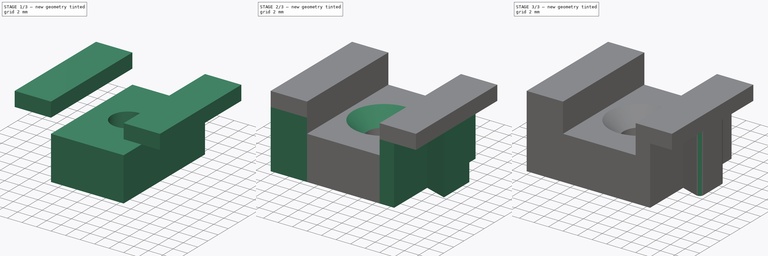
[diagram: build sequence overview — one tinted view per stage of 3, left to right]
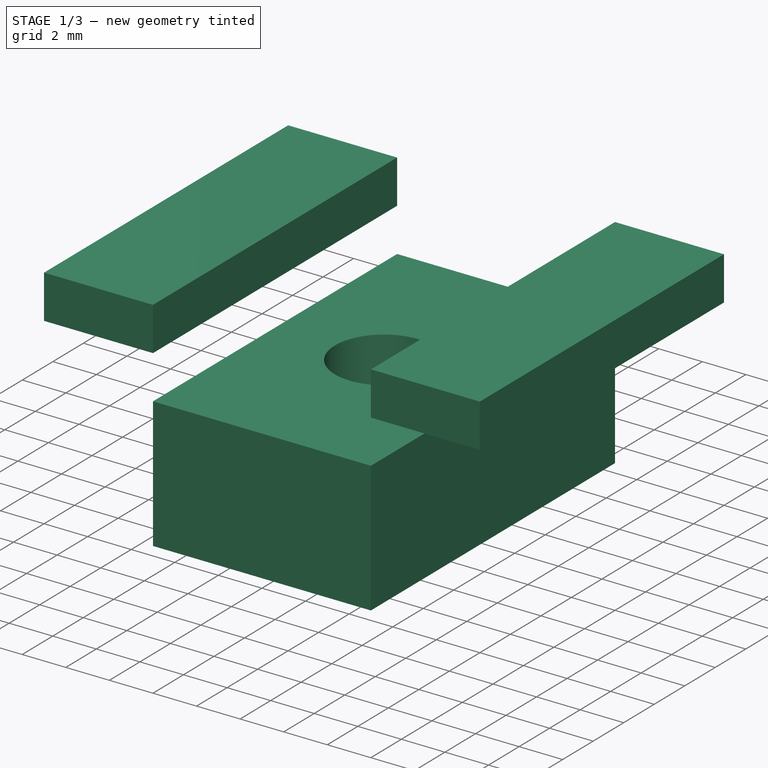
[diagram: stage 1 of 3 — iso view after this stage's code; geometry added in this stage tinted green]
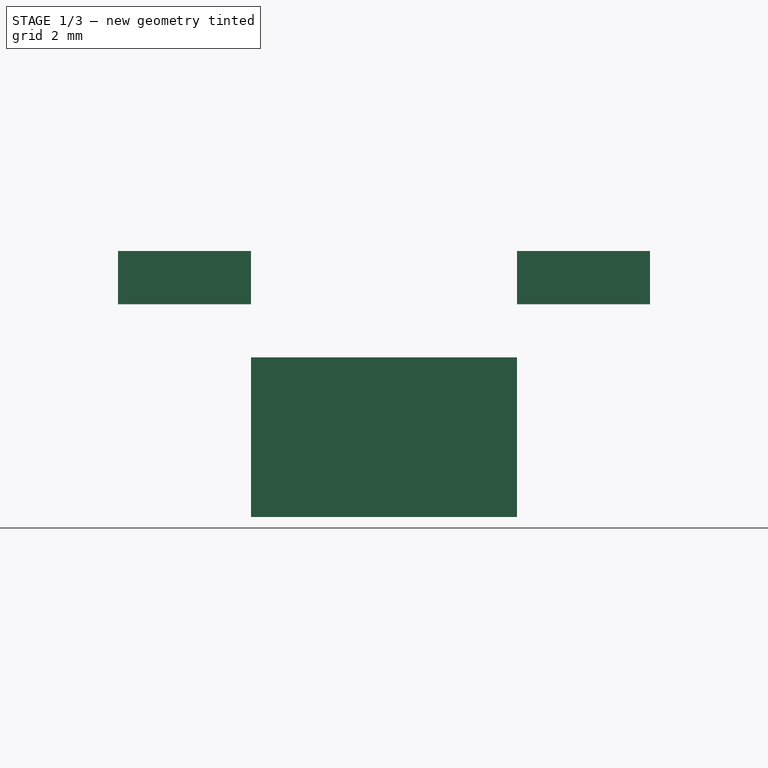
[diagram: stage 1 of 3 — front view after this stage's code; geometry added in this stage tinted green]
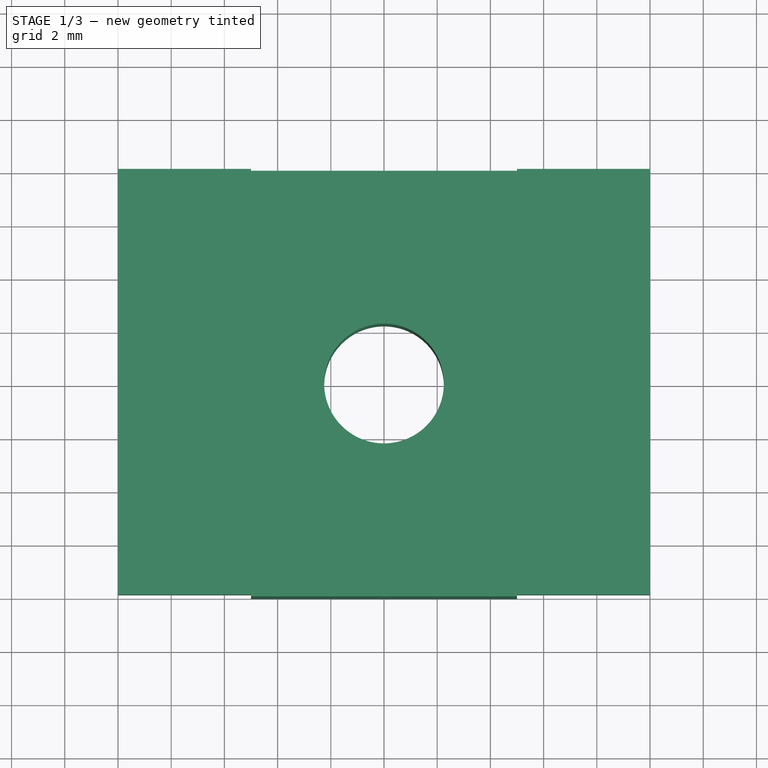
[diagram: stage 1 of 3 — top view after this stage's code; geometry added in this stage tinted green]
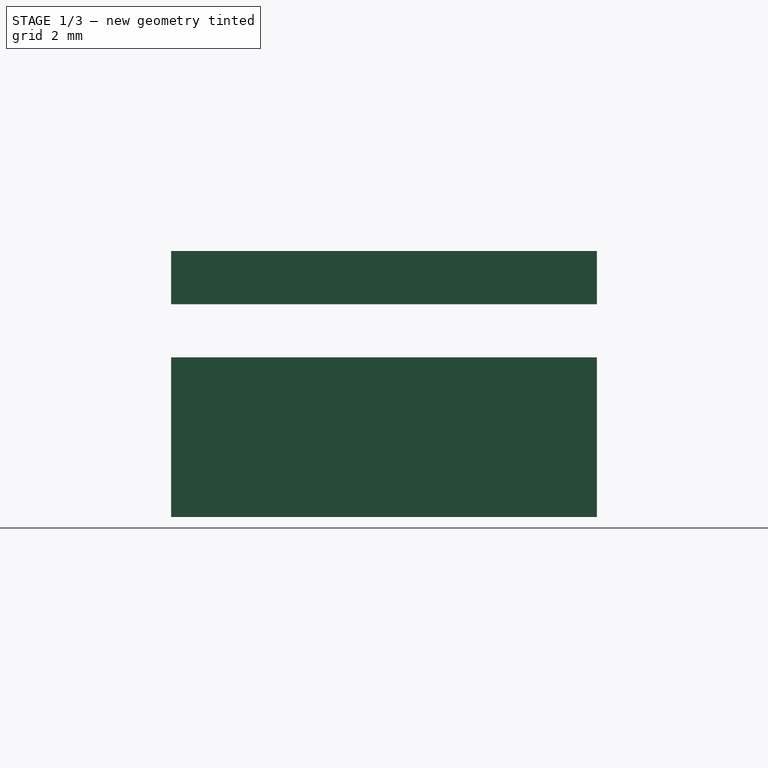
[diagram: stage 1 of 3 — right view after this stage's code; geometry added in this stage tinted green]
FCSTD DOCUMENT  (FreeCAD 0.15R4671 (Git))
Label: Encaixe-Parafuso
License: All rights reserved
LicenseURL: http://en.wikipedia.org/wiki/All_rights_reserved
objects: Sketcher::SketchObject×3, PartDesign::Pad×3, PartDesign::Fillet×1, PartDesign::Chamfer×1, Part::MultiFuse×1
note: 12 computed .brp shape members not serialized (recipe doc carries the construction recipe); baked Part::Feature solids carry a one-line shape summary decoded from their .brp

FEATURE [Sketcher::SketchObject] Sketch001
  sketch-geometry (5):
    g0: Circle CenterX=10 CenterY=-8 CenterZ=0 NormalX=0 NormalY=0 NormalZ=1 Radius=2.25
    g1: LineSegment StartX=5 StartY=0 StartZ=0 EndX=15 EndY=0 EndZ=0
    g2: LineSegment StartX=15 StartY=0 StartZ=0 EndX=15 EndY=-16 EndZ=0
    g3: LineSegment StartX=15 StartY=-16 StartZ=0 EndX=5 EndY=-16 EndZ=0
    g4: LineSegment StartX=5 StartY=-16 StartZ=0 EndX=5 EndY=0 EndZ=0
  constraints (15):
    c: DistanceY(g-1,g0) = -8
    c: DistanceX(g-1,g0) = 10
    c: Radius(g0) = 2.25
    c: Coincident(g1,g2)
    c: Coincident(g2,g3)
    c: Coincident(g3,g4)
    c: Coincident(g4,g1)
    c: Horizontal(g1)
    c: Horizontal(g3)
    c: Vertical(g2)
    c: Vertical(g4)
    c: PointOnObject(g1,g-1)
    c: DistanceY(g4) = 16
    c: DistanceX(g-1,g1) = 5
    c: DistanceX(g1) = 10
FEATURE [PartDesign::Pad] Pad001
  Length = 6
  Length2 = 100
  Sketch = -> Sketch001
  Type = 0
FEATURE [Sketcher::SketchObject] Sketch002
  Placement = pos=(0,0,8) rot=(0,0,1;0rad)
  sketch-geometry (8):
    g0: LineSegment StartX=0 StartY=0 StartZ=0 EndX=5 EndY=0 EndZ=0
    g1: LineSegment StartX=5 StartY=0 StartZ=0 EndX=5 EndY=-16 EndZ=0
    g2: LineSegment StartX=5 StartY=-16 StartZ=0 EndX=0 EndY=-16 EndZ=0
    g3: LineSegment StartX=0 StartY=-16 StartZ=0 EndX=0 EndY=0 EndZ=0
    g4: LineSegment StartX=15 StartY=0 StartZ=0 EndX=20 EndY=0 EndZ=0
    g5: LineSegment StartX=20 StartY=0 StartZ=0 EndX=20 EndY=-16 EndZ=0
    g6: LineSegment StartX=20 StartY=-16 StartZ=0 EndX=15 EndY=-16 EndZ=0
    g7: LineSegment StartX=15 StartY=-16 StartZ=0 EndX=15 EndY=0 EndZ=0
  constraints (23):
    c: Coincident(g0,g1)
    c: Coincident(g1,g2)
    c: Coincident(g2,g3)
    c: Coincident(g3,g0)
    c: Horizontal(g0)
    c: Horizontal(g2)
    c: Vertical(g1)
    c: Vertical(g3)
    c: Coincident(g0,g-1)
    c: DistanceX(g2) = -5
    c: DistanceY(g1) = -16
    c: Coincident(g4,g5)
    c: Coincident(g5,g6)
    c: Coincident(g6,g7)
    c: Coincident(g7,g4)
    c: Horizontal(g4)
    c: Horizontal(g6)
    c: Vertical(g5)
    c: Vertical(g7)
    c: PointOnObject(g4,g-1)
    c: DistanceX(g4,g0) = -10
    c: DistanceX(g4) = 5
    c: DistanceY(g5) = -16
FEATURE [PartDesign::Pad] Pad002
  Length = 2
  Length2 = 100
  Placement = pos=(0,0,8) rot=(0,0,1;0rad)
  Sketch = -> Sketch002
  Type = 0
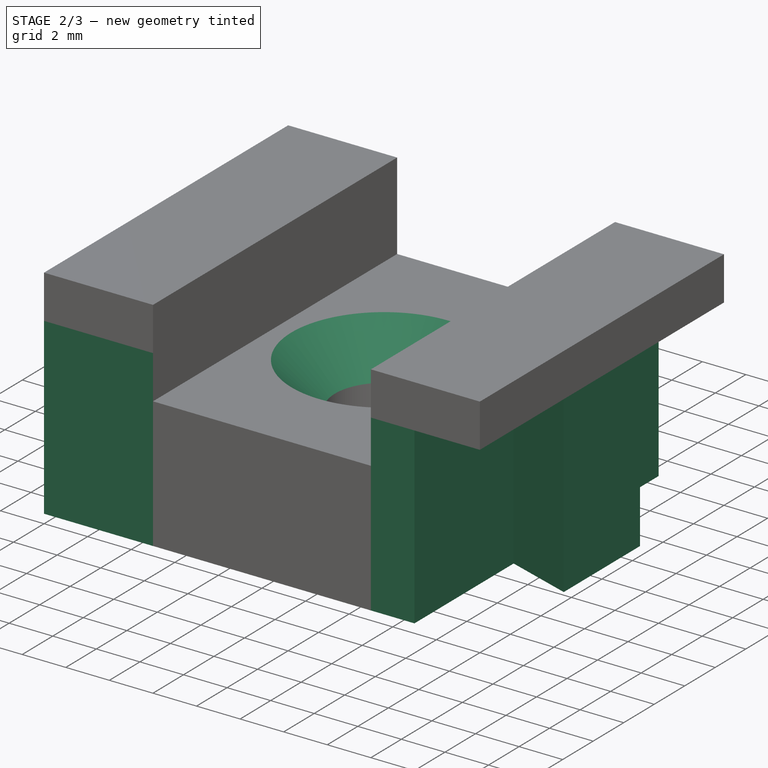
[diagram: stage 2 of 3 — iso view after this stage's code; geometry added in this stage tinted green]
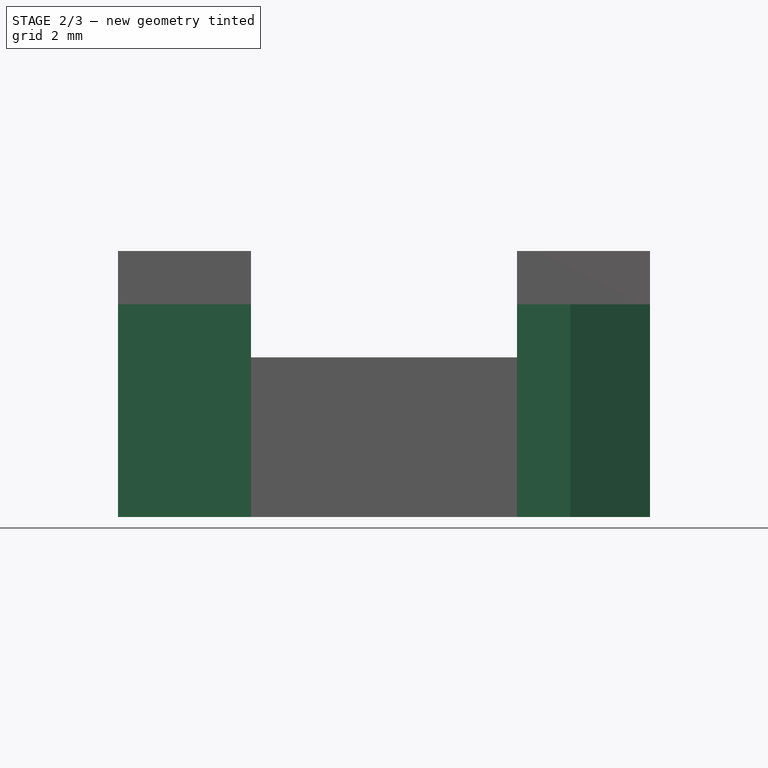
[diagram: stage 2 of 3 — front view after this stage's code; geometry added in this stage tinted green]
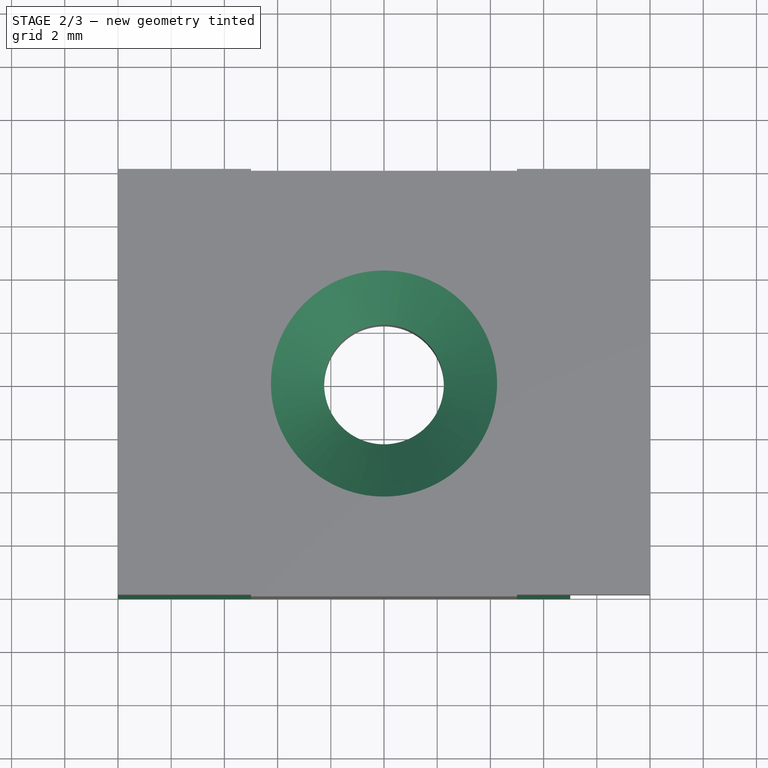
[diagram: stage 2 of 3 — top view after this stage's code; geometry added in this stage tinted green]
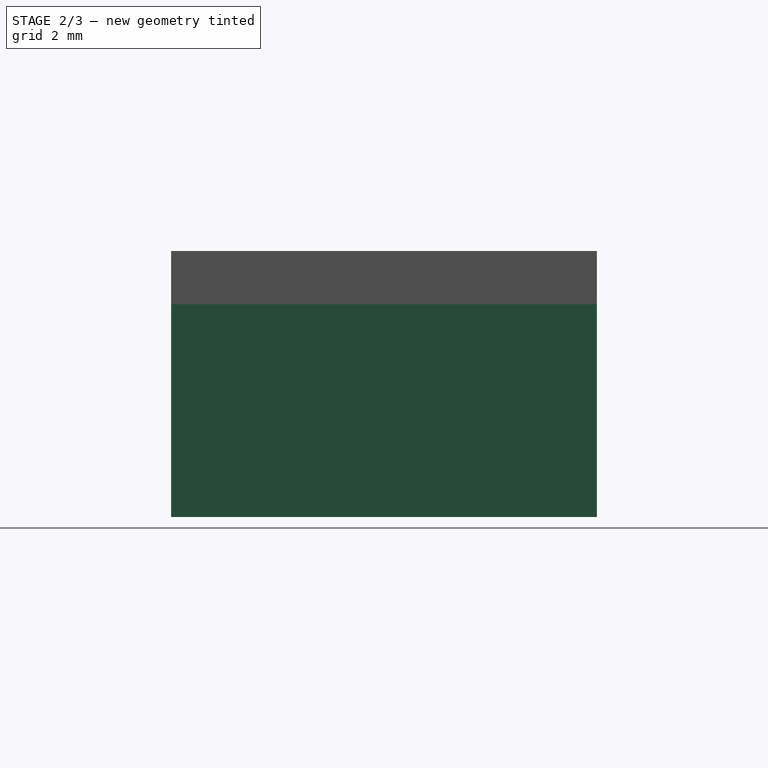
[diagram: stage 2 of 3 — right view after this stage's code; geometry added in this stage tinted green]
FEATURE [Sketcher::SketchObject] Sketch
  sketch-geometry (16):
    g0: LineSegment StartX=0 StartY=0 StartZ=0 EndX=5 EndY=0 EndZ=0
    g1: LineSegment StartX=5 StartY=0 StartZ=0 EndX=5 EndY=-16 EndZ=0
    g2: LineSegment StartX=5 StartY=-16 StartZ=0 EndX=0 EndY=-16 EndZ=0
    g3: LineSegment StartX=0 StartY=-16 StartZ=0 EndX=0 EndY=-10 EndZ=0
    g4: LineSegment StartX=0 StartY=-10 StartZ=0 EndX=3 EndY=-11 EndZ=0
    g5: LineSegment StartX=3 StartY=-11 StartZ=0 EndX=3 EndY=-5 EndZ=0
    g6: LineSegment StartX=3 StartY=-5 StartZ=0 EndX=0 EndY=-6 EndZ=0
    g7: LineSegment StartX=0 StartY=-6 StartZ=0 EndX=0 EndY=0 EndZ=0
    g8: LineSegment StartX=15 StartY=0 StartZ=0 EndX=15 EndY=-16 EndZ=0
    g9: LineSegment StartX=15 StartY=-16 StartZ=0 EndX=17 EndY=-16 EndZ=0
    g10: LineSegment StartX=17 StartY=-16 StartZ=0 EndX=17 EndY=-9.5 EndZ=0
    g11: LineSegment StartX=17 StartY=-9.5 StartZ=0 EndX=20 EndY=-10.5 EndZ=0
    g12: LineSegment StartX=20 StartY=-10.5 StartZ=0 EndX=20 EndY=-5.5 EndZ=0
    g13: LineSegment StartX=20 StartY=-5.5 StartZ=0 EndX=17 EndY=-6.5 EndZ=0
    g14: LineSegment StartX=17 StartY=-6.5 StartZ=0 EndX=17 EndY=0 EndZ=0
    g15: LineSegment StartX=17 StartY=0 StartZ=0 EndX=15 EndY=0 EndZ=0
  constraints (47):
    c: Coincident(g-1,g0)
    c: PointOnObject(g0,g-1)
    c: Coincident(g0,g1)
    c: Vertical(g1)
    c: Coincident(g1,g2)
    c: Horizontal(g2)
    c: Coincident(g2,g3)
    c: Vertical(g3)
    c: Coincident(g3,g4)
    c: Coincident(g4,g5)
    c: Vertical(g5)
    c: Coincident(g5,g6)
    c: Coincident(g6,g7)
    c: Coincident(g7,g0)
    c: Vertical(g7)
    c: DistanceY(g5,g6) = -1
    c: DistanceY(g3,g4) = -1
    c: DistanceY(g3,g6) = 4
    c: DistanceX(g6,g5) = 3
    c: DistanceX(g0) = 5
    c: DistanceY(g-1,g5) = -5
    c: DistanceY(g4,g2) = -5
    c: DistanceX(g3,g4) = 3
    c: PointOnObject(g8,g-1)
    c: Vertical(g8)
    c: Coincident(g8,g9)
    c: Horizontal(g9)
    c: Coincident(g9,g10)
    c: Vertical(g10)
    c: Coincident(g10,g11)
    c: Coincident(g11,g12)
    c: Vertical(g12)
    c: Coincident(g12,g13)
    c: Coincident(g13,g14)
    c: PointOnObject(g14,g-1)
    c: Vertical(g14)
    c: Coincident(g14,g15)
    c: Coincident(g15,g8)
    c: DistanceX(g15) = -2
    c: DistanceX(g9) = 2
    c: DistanceX(g8,g0) = -10
    c: DistanceX(g13,g12) = 3
    c: DistanceY(g12,g13) = -1
    c: DistanceY(g11,g10) = 1
    c: DistanceY(g12) = 5
    c: DistanceY(g8) = -16
    c: DistanceY(g12,g14) = 5.5
FEATURE [PartDesign::Pad] Pad
  Length = 8
  Length2 = 100
  Sketch = -> Sketch
  Type = 0
FEATURE [PartDesign::Chamfer] Chamfer
  Base = -> Pad001 [Edge15]
  Size = 2
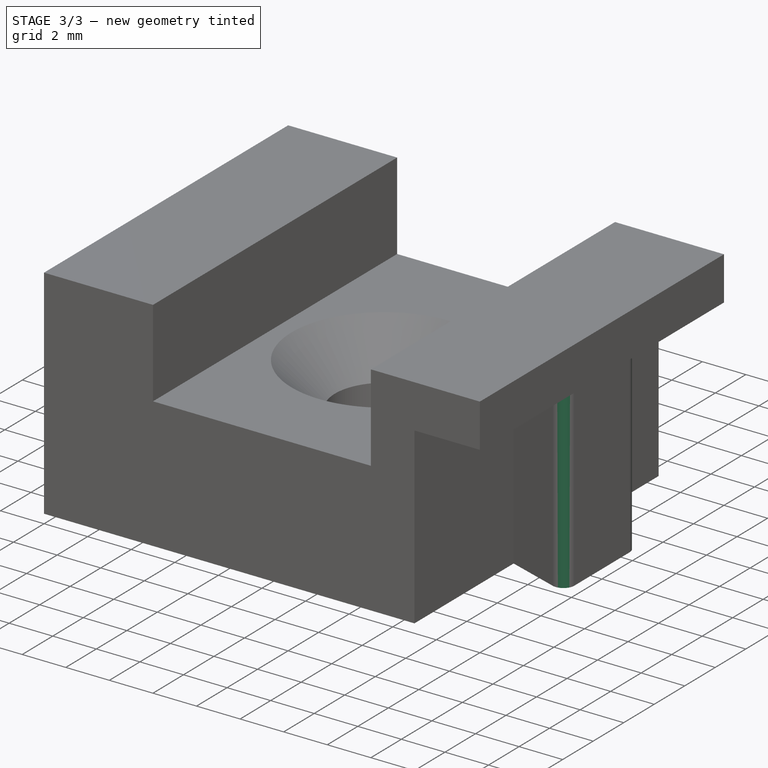
[diagram: stage 3 of 3 — iso view after this stage's code; geometry added in this stage tinted green]
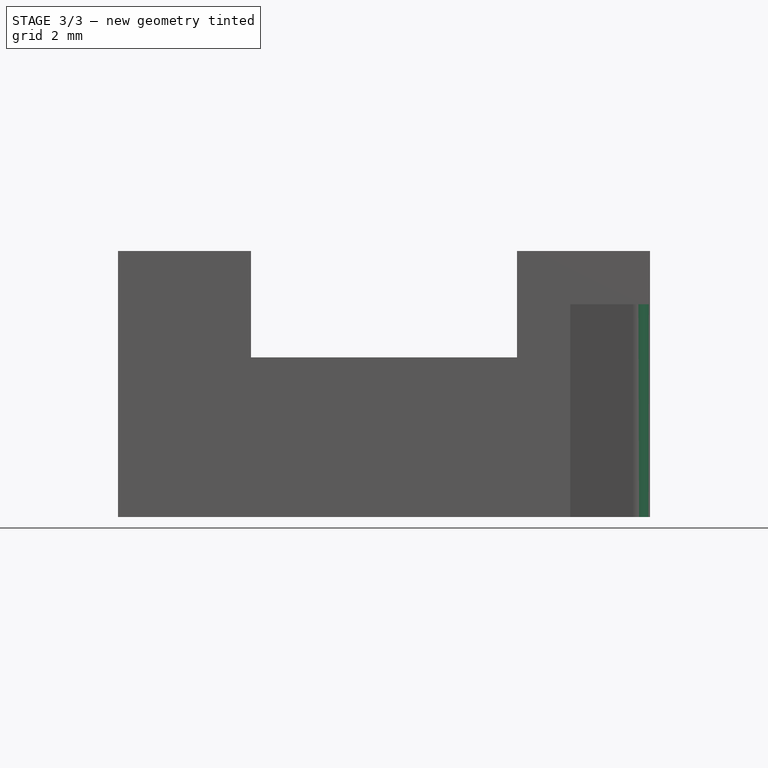
[diagram: stage 3 of 3 — front view after this stage's code; geometry added in this stage tinted green]
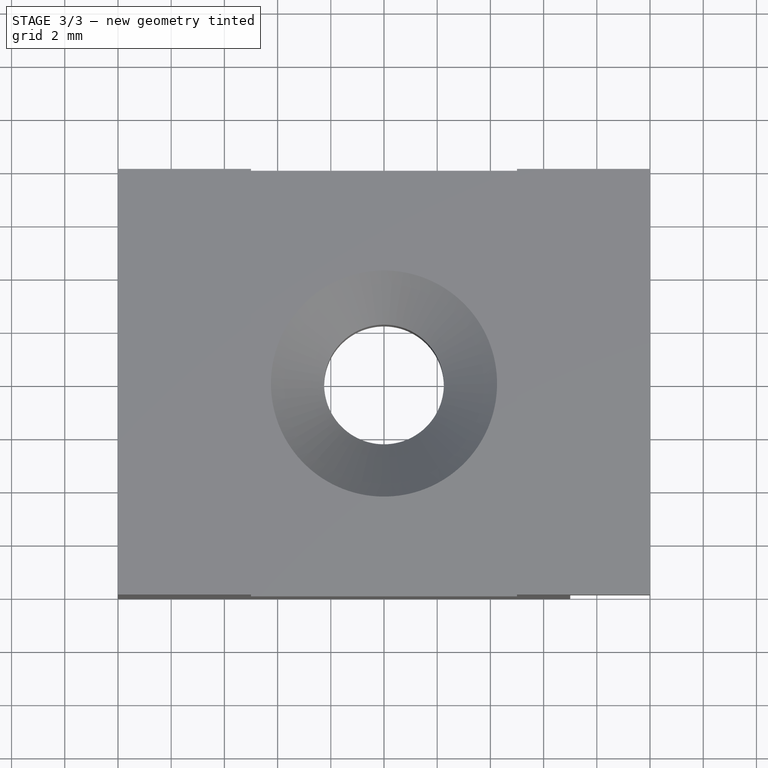
[diagram: stage 3 of 3 — top view after this stage's code; geometry added in this stage tinted green]
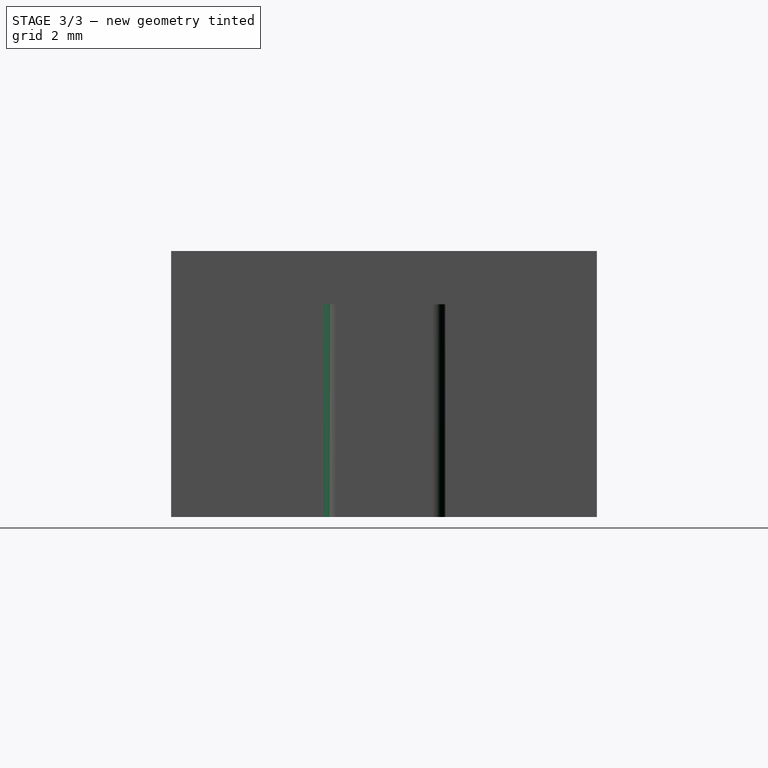
[diagram: stage 3 of 3 — right view after this stage's code; geometry added in this stage tinted green]
FEATURE [PartDesign::Fillet] Fillet  label="Encaixes"
  Base = -> Pad [Edge44,Edge35,Edge14,Edge11]
  Radius = 0.5
FEATURE [Part::MultiFuse] Fusion
  Shapes = -> [Chamfer,Fillet,Pad002]
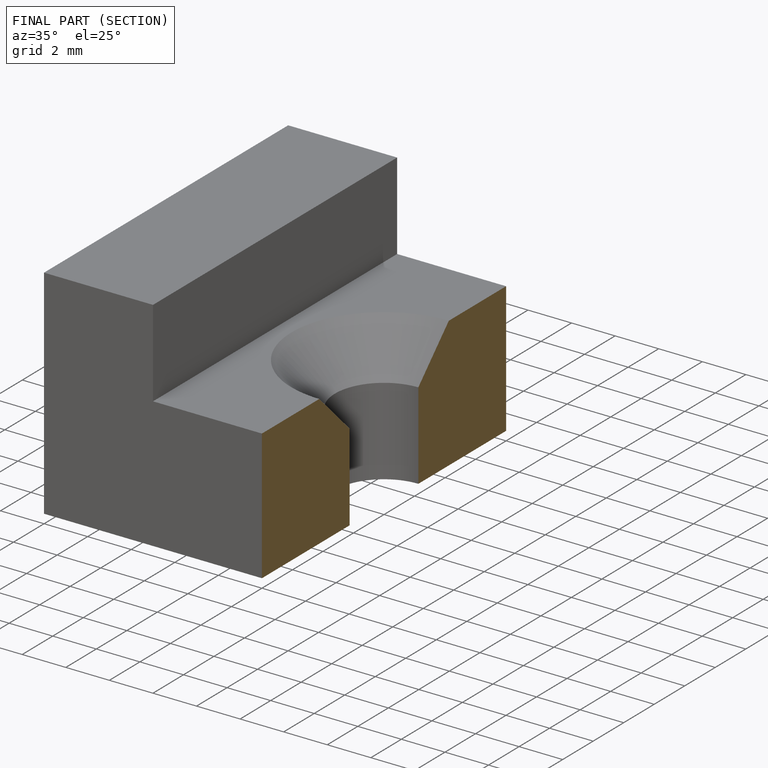
[diagram: finished part — half-section view (interior)]
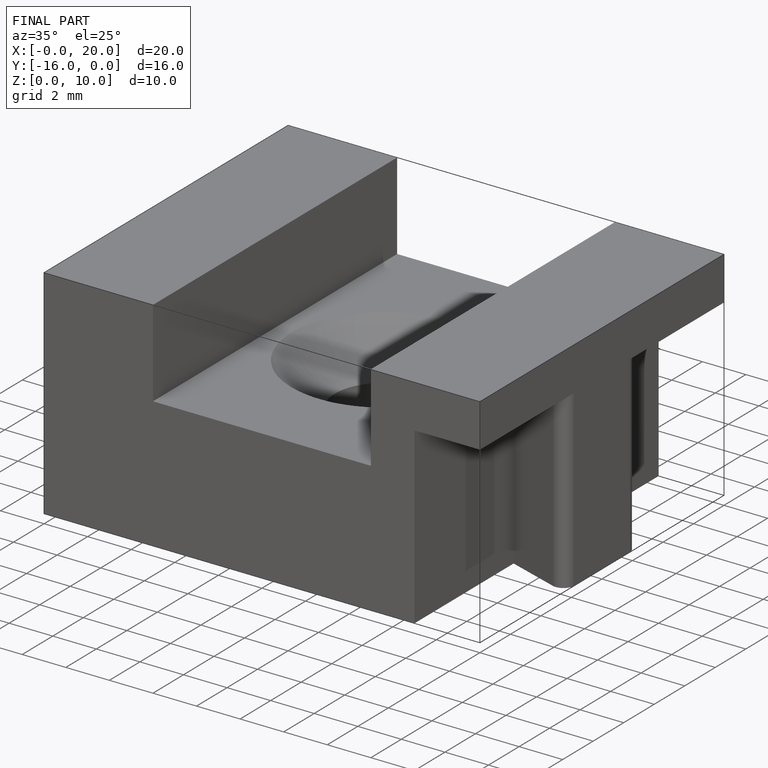
[diagram: finished part — iso view with bounding-box wireframe]
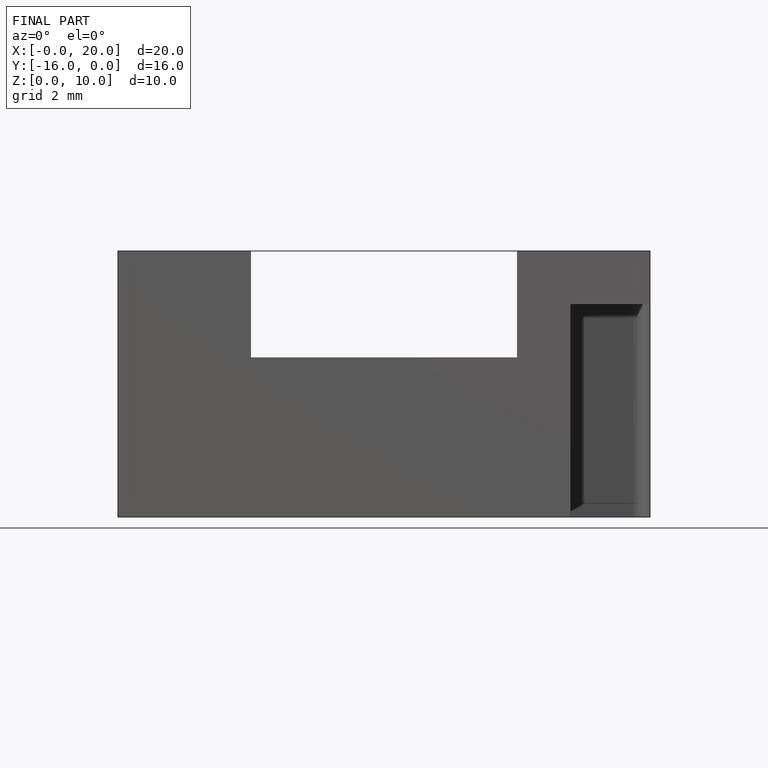
[diagram: finished part — front view with bounding-box wireframe]
